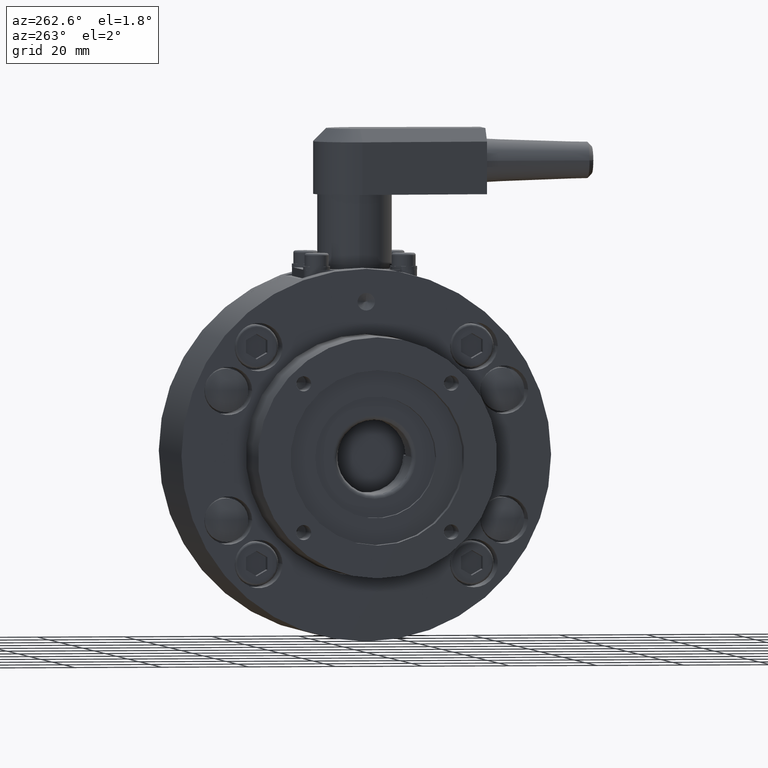
[diagram: clean part render]
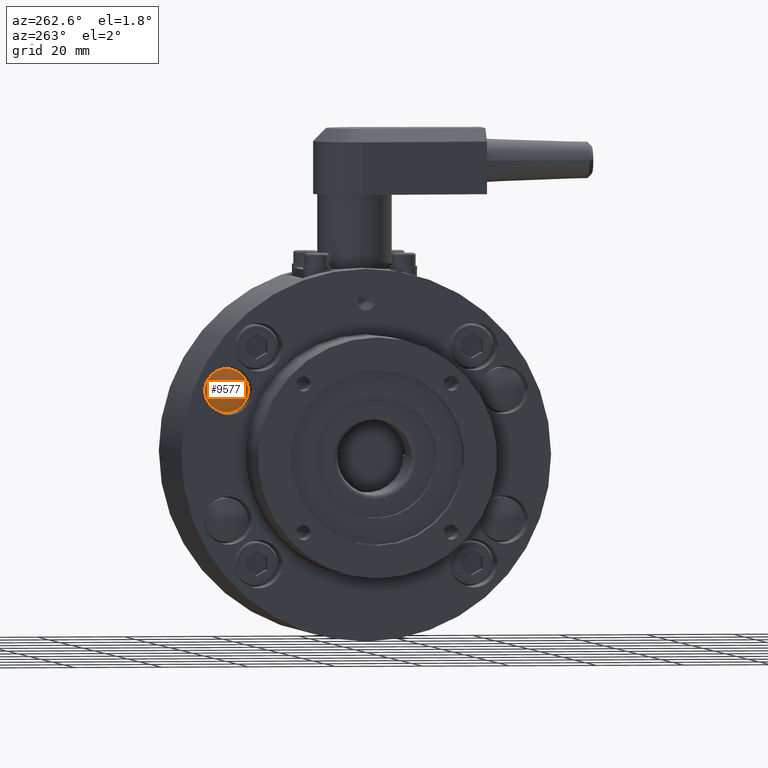
[diagram: same view with one face highlighted and labeled with its STEP entity id]
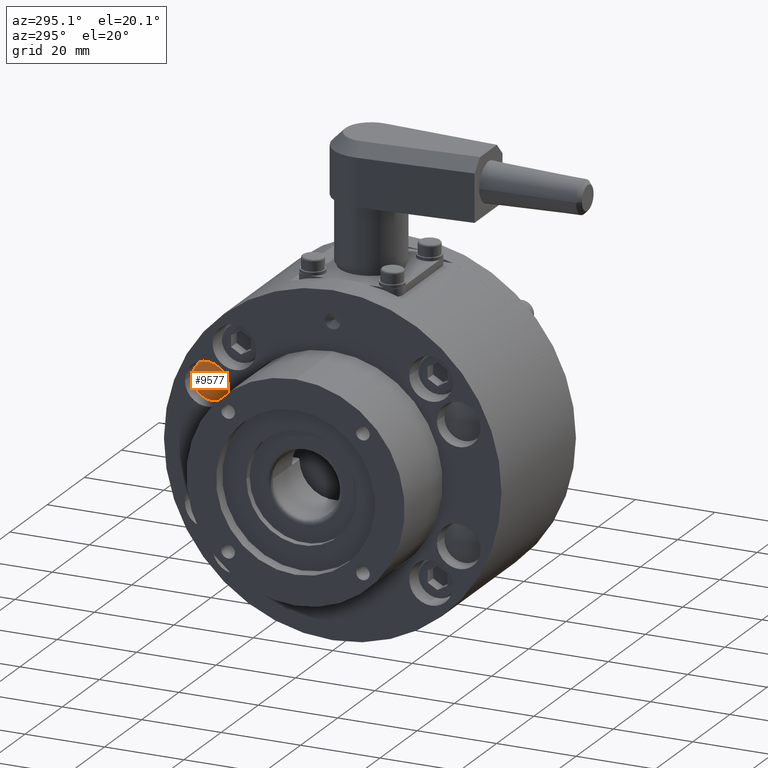
[diagram: same view with one face highlighted and labeled with its STEP entity id]
A machine part, auxiliary view. The second image highlights one B-rep face of the part: STEP entity #9577.
A second angle (auxiliary view) of the same face is appended — the face is thin or edge-on in the first view.
In plain terms, the highlighted spherical surface has radius 13 mm.
Its self-contained STEP definition (entity closure, byte-faithful):
#9431=CARTESIAN_POINT('',(-93.081696354466601,-91.814282078099154,-0.500000000000000));
#9432=VERTEX_POINT('',#9431);
#9448=CARTESIAN_POINT('',(-93.081696354466601,-101.814282078099150,-0.500000000000001));
#9449=VERTEX_POINT('',#9448);
#9456=CARTESIAN_POINT('',(-93.081696354466601,-96.814282078099154,-0.500000000000000));
#9457=DIRECTION('',(1.0,0.0,0.0));
#9458=DIRECTION('',(0.0,1.0,0.0));
#9459=AXIS2_PLACEMENT_3D('',#9456,#9457,#9458);
#9460=CIRCLE('',#9459,5.0);
#9461=EDGE_CURVE('',#9449,#9432,#9460,.T.);
#9562=CARTESIAN_POINT('',(-81.081696354466601,-96.814282078099154,-0.500000000000000));
#9563=DIRECTION('',(0.0,0.0,1.0));
#9564=DIRECTION('',(1.0,0.0,0.0));
#9565=AXIS2_PLACEMENT_3D('',#9562,#9563,#9564);
#9566=SPHERICAL_SURFACE('',#9565,13.0);
#9567=CARTESIAN_POINT('',(-93.081696354466601,-96.814282078099154,-0.500000000000000));
#9568=DIRECTION('',(1.0,0.0,0.0));
#9569=DIRECTION('',(0.0,1.0,0.0));
#9570=AXIS2_PLACEMENT_3D('',#9567,#9568,#9569);
#9571=CIRCLE('',#9570,5.0);
#9572=EDGE_CURVE('',#9432,#9449,#9571,.T.);
#9573=ORIENTED_EDGE('',*,*,#9572,.F.);
#9574=ORIENTED_EDGE('',*,*,#9461,.F.);
#9575=EDGE_LOOP('',(#9573,#9574));
#9576=FACE_OUTER_BOUND('',#9575,.T.);
#9577=ADVANCED_FACE('',(#9576),#9566,.T.);